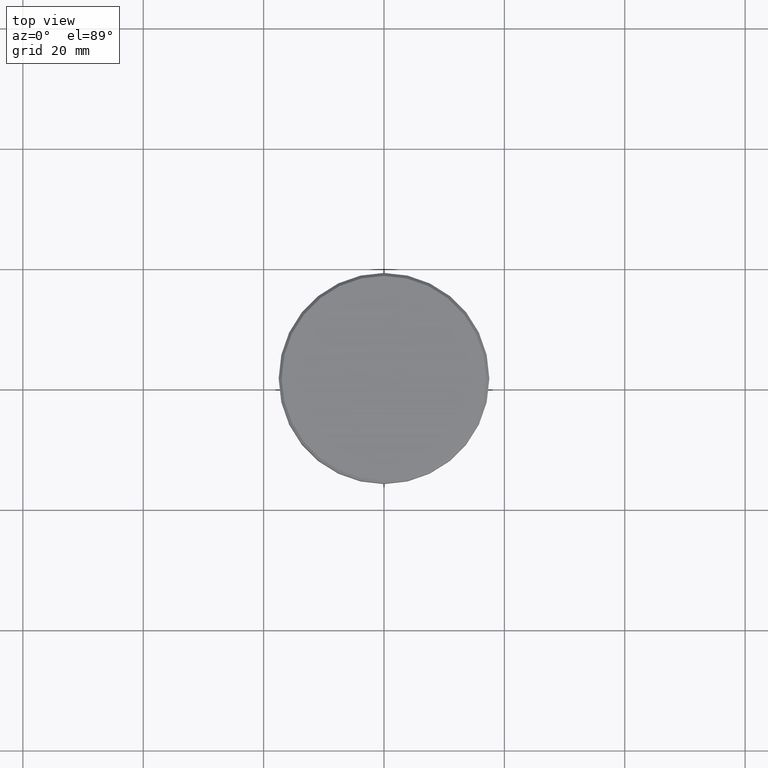
[diagram: clean part render]
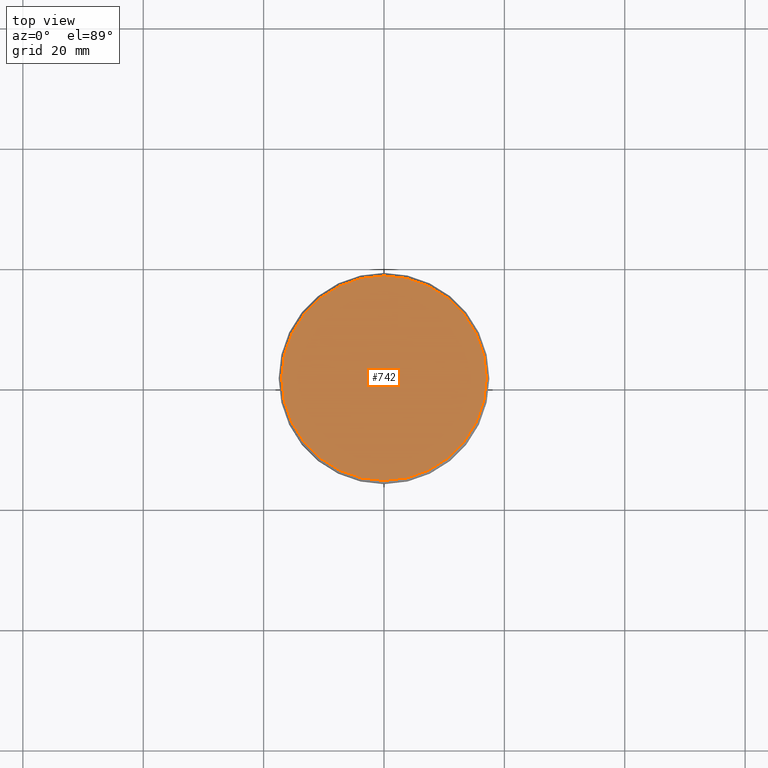
[diagram: same view with one face highlighted and labeled with its STEP entity id]
A machine part, top view. The second image highlights one B-rep face of the part: STEP entity #742.
In plain terms, the highlighted planar face has unit normal (0, -0, 1).
Its self-contained STEP definition (entity closure, byte-faithful):
#13 = DIRECTION ( 'NONE',  ( -0.000000000000000000, -0.000000000000000000, 1.000000000000000000 ) ) ;
#14 = DIRECTION ( 'NONE',  ( 1.000000000000000000, 0.000000000000000000, 0.000000000000000000 ) ) ;
#65 = CIRCLE ( 'NONE', #734, 16.99999999999997513 ) ;
#101 = CARTESIAN_POINT ( 'NONE',  ( 0.000000000000000000, 0.000000000000000000, 0.000000000000000000 ) ) ;
#176 = DIRECTION ( 'NONE',  ( 1.000000000000000000, 0.000000000000000000, 0.000000000000000000 ) ) ;
#178 = VERTEX_POINT ( 'NONE', #285 ) ;
#204 = CARTESIAN_POINT ( 'NONE',  ( 0.000000000000000000, 0.000000000000000000, 0.000000000000000000 ) ) ;
#232 = CIRCLE ( 'NONE', #1001, 16.99999999999997513 ) ;
#285 = CARTESIAN_POINT ( 'NONE',  ( -16.99999999999997513, 0.000000000000000000, 0.000000000000000000 ) ) ;
#294 = PLANE ( 'NONE',  #1019 ) ;
#518 = EDGE_LOOP ( 'NONE', ( #874, #859 ) ) ;
#573 = EDGE_CURVE ( 'NONE', #881, #178, #232, .T. ) ;
#619 = CARTESIAN_POINT ( 'NONE',  ( 0.000000000000000000, 0.000000000000000000, 0.000000000000000000 ) ) ;
#656 = FACE_OUTER_BOUND ( 'NONE', #518, .T. ) ;
#662 = DIRECTION ( 'NONE',  ( 0.000000000000000000, -0.000000000000000000, 1.000000000000000000 ) ) ;
#734 = AXIS2_PLACEMENT_3D ( 'NONE', #101, #13, #744 ) ;
#742 = ADVANCED_FACE ( 'NONE', ( #656 ), #294, .T. ) ;
#744 = DIRECTION ( 'NONE',  ( 1.000000000000000000, 0.000000000000000000, 0.000000000000000000 ) ) ;
#859 = ORIENTED_EDGE ( 'NONE', *, *, #573, .T. ) ;
#874 = ORIENTED_EDGE ( 'NONE', *, *, #1091, .T. ) ;
#881 = VERTEX_POINT ( 'NONE', #973 ) ;
#896 = DIRECTION ( 'NONE',  ( -0.000000000000000000, -0.000000000000000000, 1.000000000000000000 ) ) ;
#973 = CARTESIAN_POINT ( 'NONE',  ( 16.99999999999997513, 2.112515728529182883E-15, 0.000000000000000000 ) ) ;
#1001 = AXIS2_PLACEMENT_3D ( 'NONE', #619, #896, #176 ) ;
#1019 = AXIS2_PLACEMENT_3D ( 'NONE', #204, #662, #14 ) ;
#1091 = EDGE_CURVE ( 'NONE', #178, #881, #65, .T. ) ;